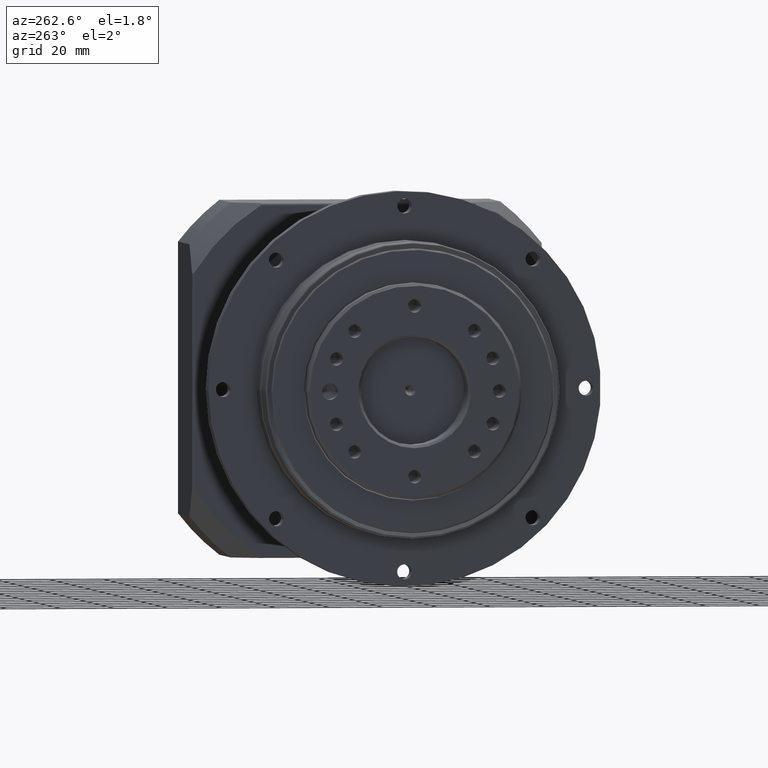
[diagram: clean part render]
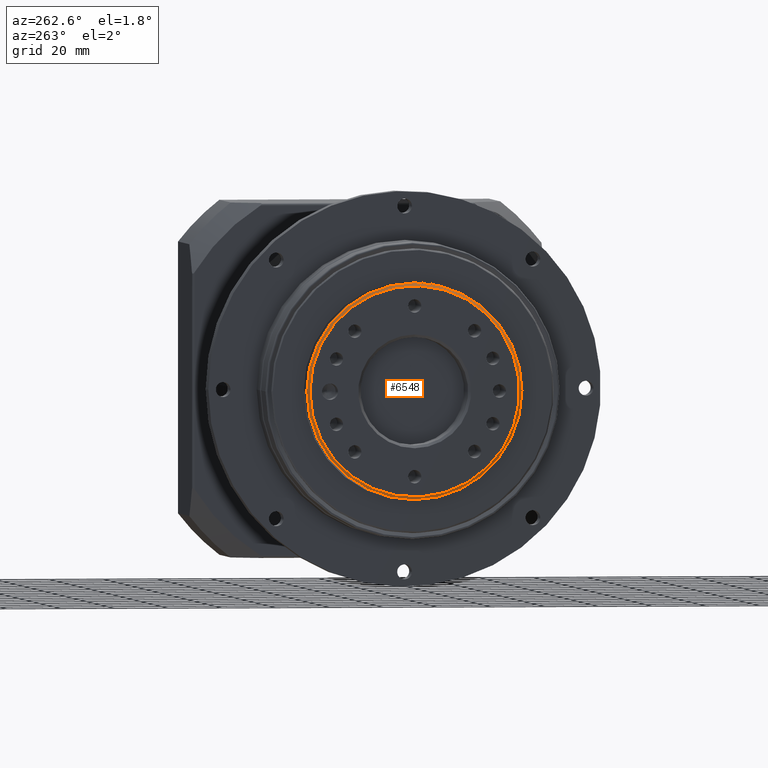
[diagram: same view with one face highlighted and labeled with its STEP entity id]
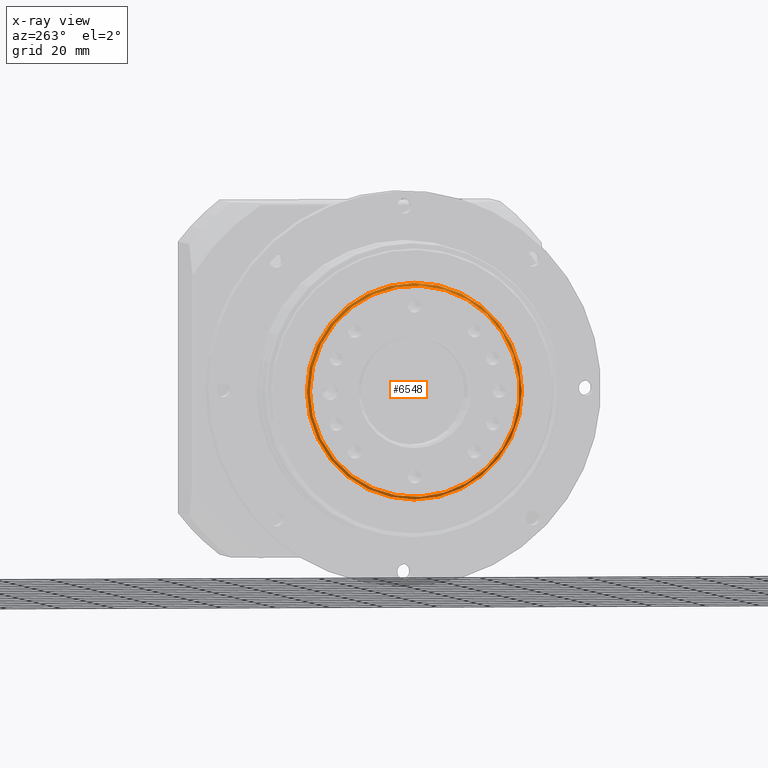
[diagram: x-ray of the same camera — body ghosted, the highlighted face saturated]
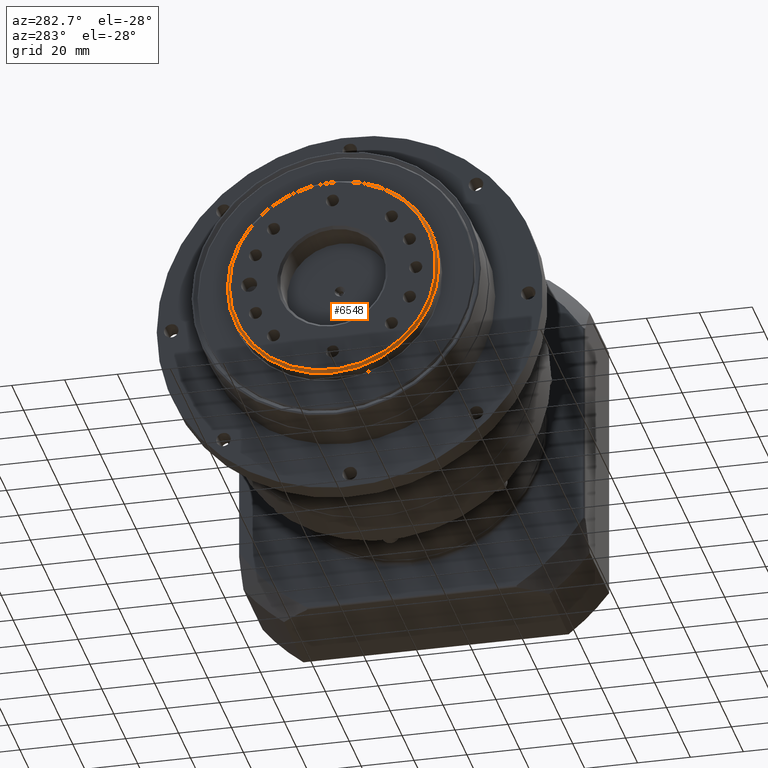
[diagram: same view with one face highlighted and labeled with its STEP entity id]
A machine part, auxiliary view. The second image highlights one B-rep face of the part: STEP entity #6548.
The next image is the same camera in x-ray: the body ghosted, the highlighted face saturated — about 0% of this face is hidden behind the body in this view.
A second angle (auxiliary view) of the same face is appended — the face is thin or edge-on in the first view.
In plain terms, the highlighted conical surface has half-angle 45 deg.
Its self-contained STEP definition (entity closure, byte-faithful):
#799=CONICAL_SURFACE('',#7215,39.5,45.);
#1167=FACE_BOUND('',#2165,.T.);
#1576=FACE_OUTER_BOUND('',#2164,.T.);
#2164=EDGE_LOOP('',(#5094));
#2165=EDGE_LOOP('',(#5095));
#2776=CIRCLE('',#7216,39.);
#2777=CIRCLE('',#7217,40.);
#3272=VERTEX_POINT('',#10696);
#3273=VERTEX_POINT('',#10698);
#3963=EDGE_CURVE('',#3272,#3272,#2776,.T.);
#3964=EDGE_CURVE('',#3273,#3273,#2777,.T.);
#5094=ORIENTED_EDGE('',*,*,#3963,.T.);
#5095=ORIENTED_EDGE('',*,*,#3964,.T.);
#6548=ADVANCED_FACE('',(#1576,#1167),#799,.T.);
#7215=AXIS2_PLACEMENT_3D('',#10695,#8594,#8595);
#7216=AXIS2_PLACEMENT_3D('',#10697,#8596,#8597);
#7217=AXIS2_PLACEMENT_3D('',#10699,#8598,#8599);
#8594=DIRECTION('center_axis',(1.,4.93844283669231E-29,1.09909151894501E-14));
#8595=DIRECTION('ref_axis',(2.53164811432881E-26,-1.,-2.29890744122696E-12));
#8596=DIRECTION('center_axis',(1.,4.93844283669231E-29,1.09909151894501E-14));
#8597=DIRECTION('ref_axis',(2.53164811432881E-26,-1.,-2.29890744122696E-12));
#8598=DIRECTION('center_axis',(-1.,-4.93844283669231E-29,-1.09909151894501E-14));
#8599=DIRECTION('ref_axis',(2.53164811432881E-26,-1.,-2.29890744122696E-12));
#10695=CARTESIAN_POINT('Origin',(-96.1916274838069,-82.5168586315023,73.4991007412613));
#10696=CARTESIAN_POINT('',(-96.6916274838069,-43.5168586315023,73.499100741351));
#10697=CARTESIAN_POINT('Origin',(-96.6916274838069,-82.5168586315023,73.4991007412613));
#10698=CARTESIAN_POINT('',(-95.6916274838069,-42.5168586315023,73.4991007413533));
#10699=CARTESIAN_POINT('Origin',(-95.6916274838069,-82.5168586315023,73.4991007412613));